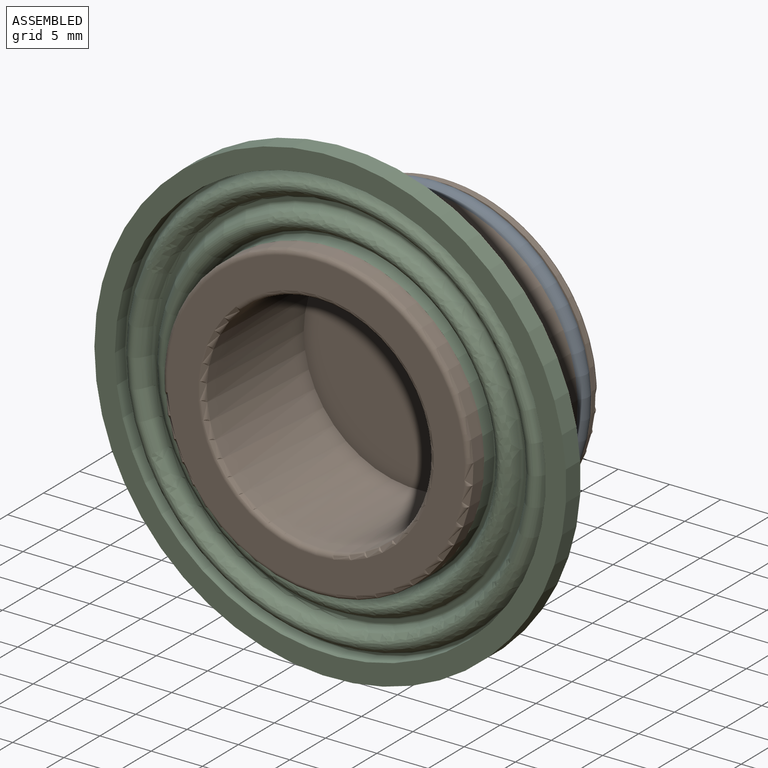
[diagram: assembled view]
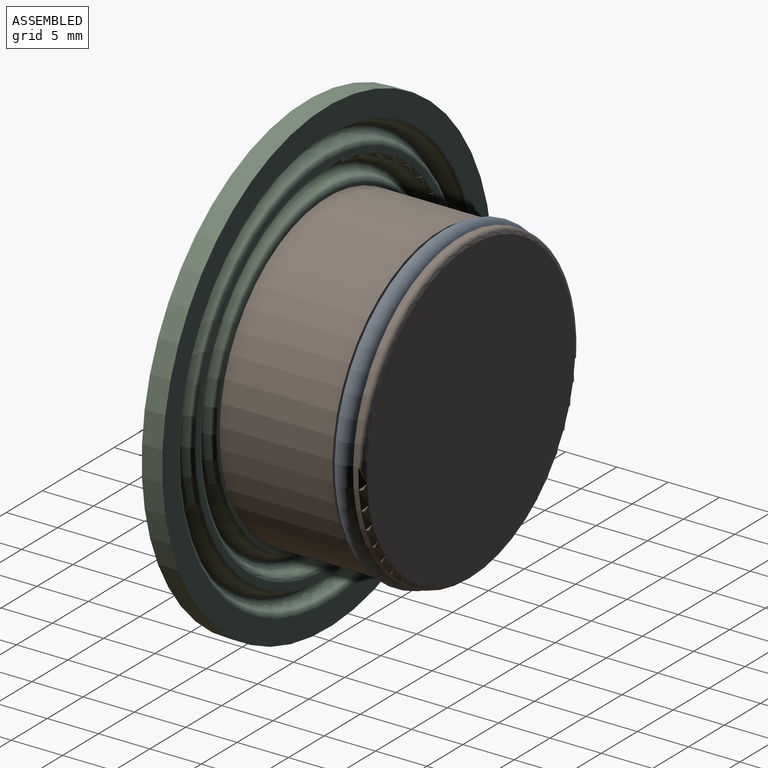
[diagram: assembled view, second angle]
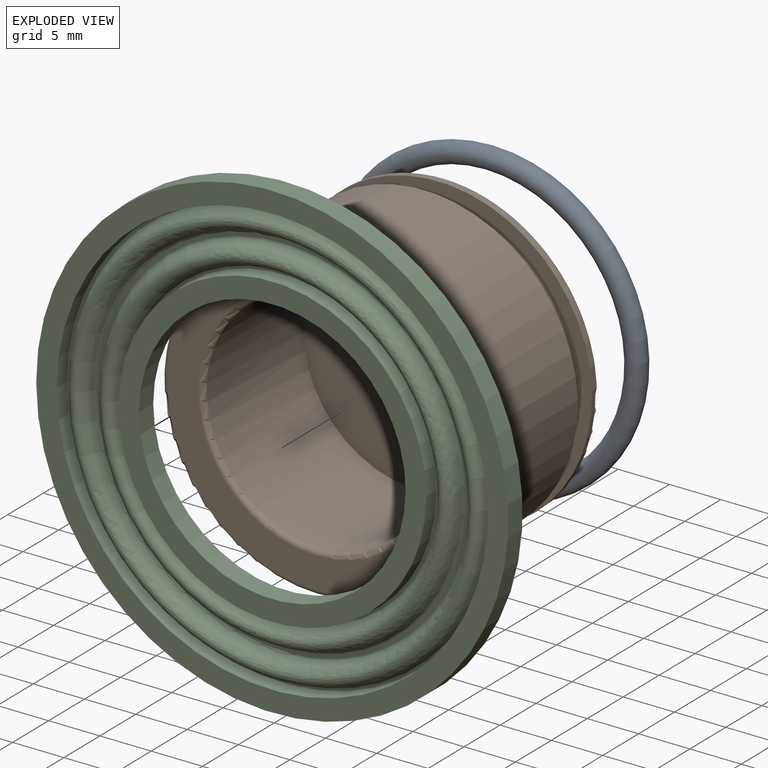
[diagram: exploded view]
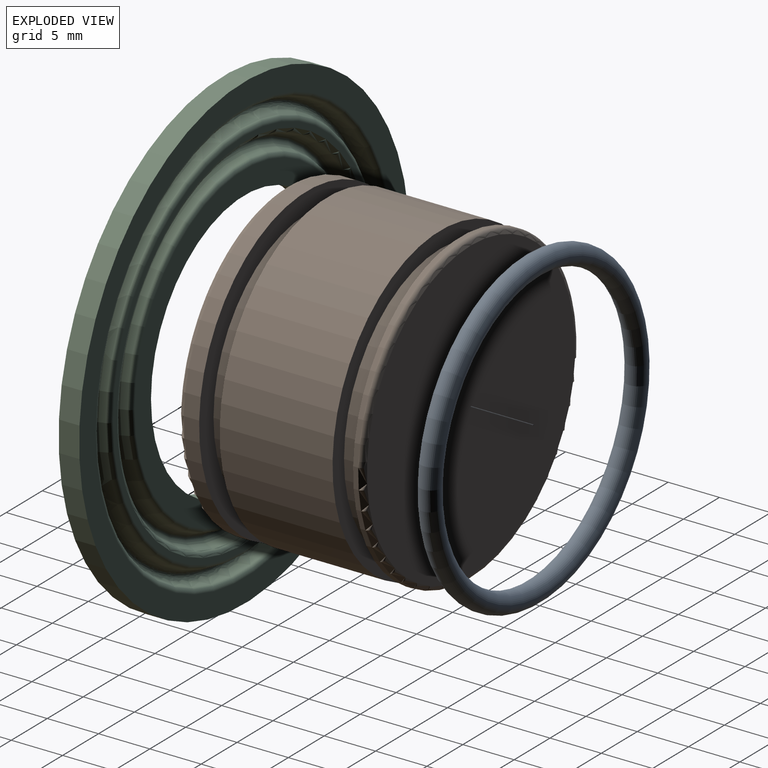
[diagram: exploded view, second angle]
ASSEMBLY  parts=3 mates=2
PART A: 1 faces, bbox 33.3x2x33.3 mm
  f0: torus R=14.4mm, axis (0,1,0), area 568.5mm2
PART B: 16 faces, bbox 32.5x18x32.5 mm
  f0: cylinder r=11mm len=22mm, axis (0,1,0), area 933.1mm2, adj f3,f4
  f1: cylinder r=15mm len=30mm, axis (0,1,0), area 141.4mm2, adj f5,f6
  f2: plane 29x29mm, normal (0,-1,0), area 245mm2, adj f4,f5
  f3: plane 22x22mm, normal (0,-1,0), area 380.1mm2, adj f0
  f4: torus R=11.5mm, axis (0,-1,0), area 55.2mm2, adj f0,f2
  f5: torus R=14.5mm, axis (0,-1,0), area 73.1mm2, adj f1,f2
  f6: plane 30x30mm, normal (0,1,0), area 175.9mm2, adj f1,f7
  f7: cylinder r=13mm len=26mm, axis (0,-1,0), area 163.4mm2, adj f6,f8
  f8: plane 30x30mm, normal (0,-1,0), area 175.9mm2, adj f7,f9
  f9: cylinder r=15mm len=30mm, axis (0,1,0), area 1036.7mm2, adj f8,f10
  f10: plane 30x30mm, normal (0,1,0), area 142.8mm2, adj f9,f11
  f11: cylinder r=13.4mm len=26.8mm, axis (0,-1,0), area 168.4mm2, adj f10,f12
  f12: plane 30x30mm, normal (0,-1,0), area 142.8mm2, adj f11,f15
  f13: plane 29x29mm, normal (0,1,0), area 660.5mm2, adj f14
  f14: torus R=14.5mm, axis (0,-1,0), area 73.1mm2, adj f13,f15
  f15: cylinder r=15mm len=30mm, axis (0,1,0), area 47.1mm2, adj f12,f14
PART C: 26 faces, bbox 46x46x2 mm
  f0: plane 30x30mm, normal (0,0,1), area 175.9mm2, adj f1,f15
  f1: cylinder r=13mm len=26mm, axis (0,0,-1), area 163.4mm2, adj f0,f2
  f2: plane 30.56x30.56mm, normal (0,0,-1), area 202.7mm2, adj f1,f20
  f3: revolved ~34.47x34.47mm, area 294.3mm2, adj f20,f21
  f4: plane 36.56x36.56mm, normal (0,0,-1), area 63.6mm2, adj f21,f22
  f5: revolved ~40.47x40.47mm, area 347.8mm2, adj f22,f23
  f6: plane 46x46mm, normal (0,0,-1), area 313.3mm2, adj f7,f23
  f7: cylinder r=23mm len=46mm, axis (0,0,-1), area 289mm2, adj f6,f8
  f8: plane 46x46mm, normal (0,0,1), area 276.5mm2, adj f7,f9
  f9: cylinder r=21mm len=42mm, axis (0,0,-1), area 184.7mm2, adj f8,f16
  f10: plane 41.8x41.8mm, normal (0,0,1), area 20.3mm2, adj f16,f17
  f11: revolved ~41.3x41.3mm, area 463.8mm2, adj f17,f24
  f12: plane 36.29x36.29mm, normal (0,0,1), area 33.1mm2, adj f24,f25
  f13: revolved ~35.23x35.23mm, area 391.1mm2, adj f18,f25
  f14: plane 30.51x30.51mm, normal (0,0,1), area 14.8mm2, adj f18,f19
  f15: cylinder r=15mm len=30mm, axis (0,0,-1), area 131.9mm2, adj f0,f19
  f16: torus R=20.9mm, axis (0,0,-1), area 20.7mm2, adj f9,f10
  f17: torus R=20.74mm, axis (0,0,-1), area 16.5mm2, adj f10,f11
  f18: torus R=15.26mm, axis (0,0,-1), area 12.2mm2, adj f13,f14
  f19: torus R=15.1mm, axis (0,0,-1), area 14.8mm2, adj f14,f15
  f20: torus R=15.28mm, axis (0,0,-1), area 64.2mm2, adj f2,f3
  f21: torus R=17.72mm, axis (0,0,-1), area 71.9mm2, adj f3,f4
  f22: torus R=18.28mm, axis (0,0,-1), area 76.6mm2, adj f4,f5
  f23: torus R=20.72mm, axis (0,0,-1), area 84.3mm2, adj f5,f6
  f24: torus R=18.15mm, axis (0,0,-1), area 35.8mm2, adj f11,f12
  f25: torus R=17.85mm, axis (0,0,-1), area 34.7mm2, adj f12,f13
PLACE A t=(0,-6.19,0)mm
PLACE B t=(0,-6.19,0)mm
PLACE C rot(axis=(1,0,0),90deg) t=(0,-20.19,0)mm
MATE fastened C.f1 <-> B.f0  axis (0,1,0) through (0,-21.19,0)mm
MATE fastened A.f0 <-> B.f0  axis (0,1,0) through (0,-8.19,0)mm
